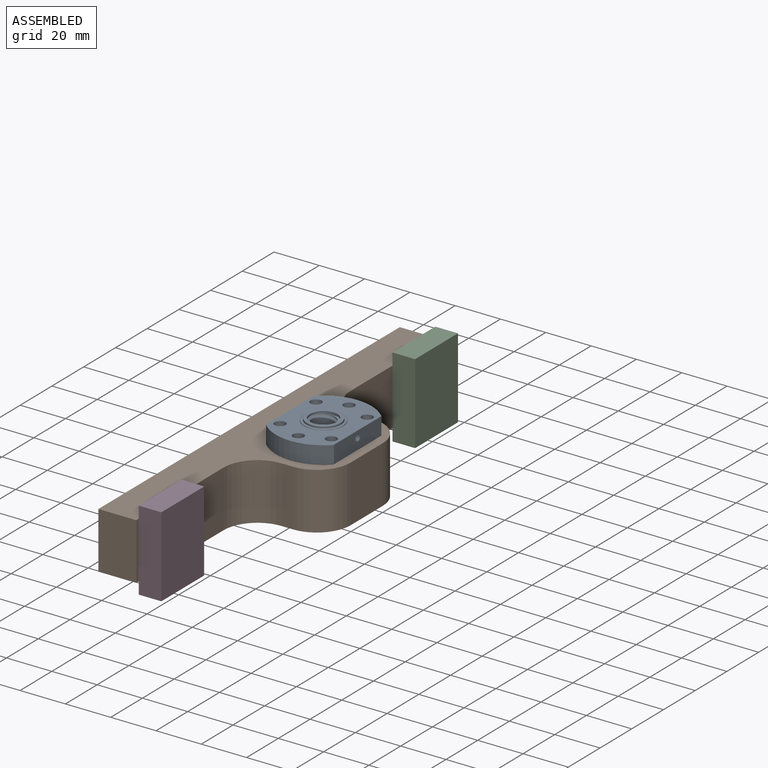
[diagram: assembled view]
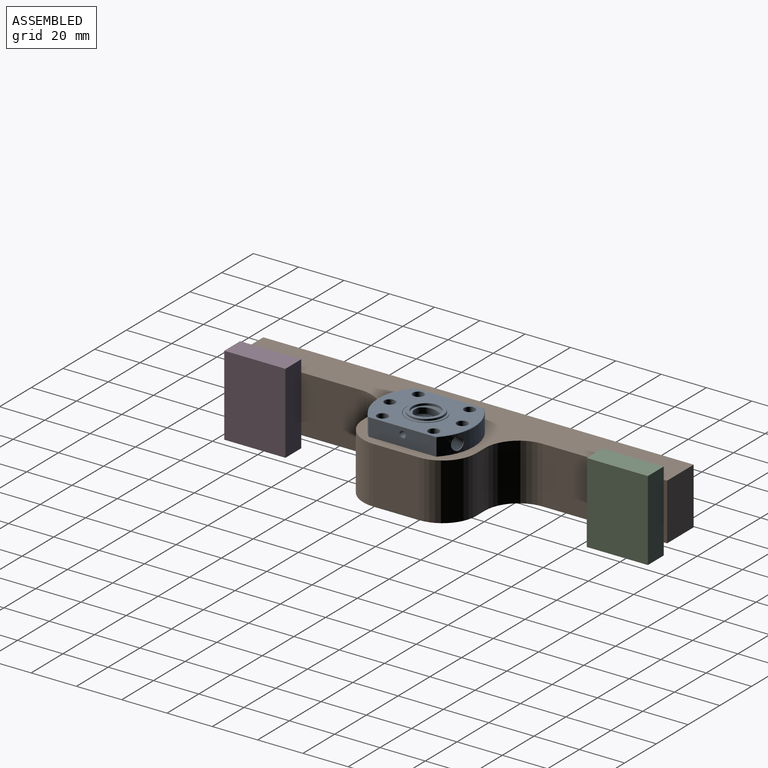
[diagram: assembled view, second angle]
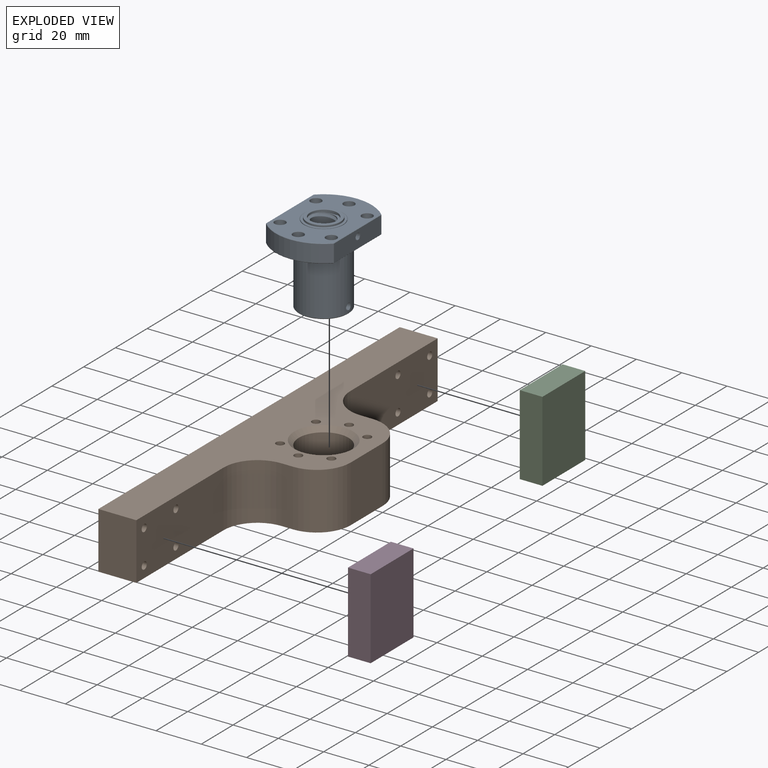
[diagram: exploded view]
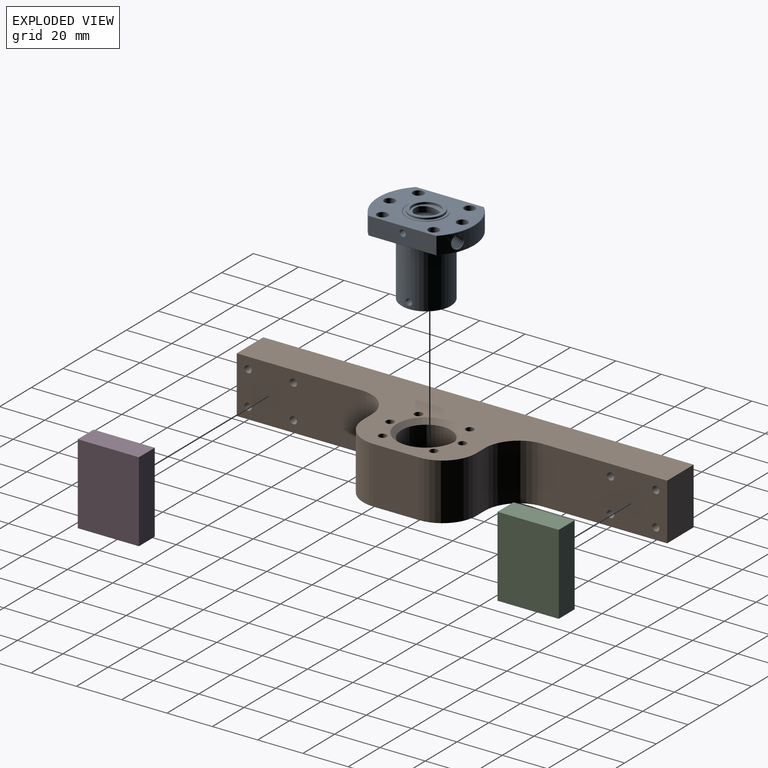
[diagram: exploded view, second angle]
ASSEMBLY  parts=4 mates=3
PART A: 102 faces, bbox 45.1x42.8x33 mm
  f0: cylinder r=1.54mm len=6.58mm, axis (0,0,-1), area 14.7mm2, adj f1,f3,f4,f5
  f1: bspline ~6.91x3.09mm, area 37.3mm2, adj f0,f2,f3,f5
  f2: cylinder r=1.26mm len=6.56mm, axis (0,0,-1), area 6.5mm2, adj f1,f3,f4,f5
  f3: cylinder r=8.5mm len=2.9mm, axis (0,1,0), area 6.1mm2, adj f0,f1,f2,f4
  f4: bspline ~6.88x3.09mm, area 37.4mm2, adj f0,f2,f3,f5
  f5: plane 29.89x7.84mm, normal (0,0,1), area 222.7mm2, adj f0,f1,f2,f4,f6,f99,f100,f101
  f6: cylinder r=0.3mm len=7.7mm, axis (0,1,0), area 1.8mm2, adj f5,f7,f97,f98
  f7: cylinder r=21.21mm len=29.82mm, axis (0,1,0), area 254.6mm2, adj f6,f8,f95,f96
  f8: cylinder r=0.3mm len=7.7mm, axis (0,1,0), area 1.8mm2, adj f7,f9,f93,f94
  f9: plane 29.89x7.84mm, normal (0,0,-1), area 222.7mm2, adj f8,f10,f12,f13,f14,f15,f91,f92
  f10: cylinder r=1.26mm len=6.59mm, axis (0,0,-1), area 6.5mm2, adj f9,f11,f12,f14
  f11: cylinder r=8.5mm len=2.87mm, axis (0,1,0), area 6.3mm2, adj f10,f12,f13,f14
  f12: bspline ~6.91x3.08mm, area 37.3mm2, adj f9,f10,f11,f13
  f13: cylinder r=1.54mm len=6.62mm, axis (0,0,-1), area 14.8mm2, adj f9,f11,f12,f14
  f14: bspline ~6.94x3.09mm, area 37.4mm2, adj f9,f10,f11,f13
  f15: cylinder r=0.3mm len=7.7mm, axis (0,1,0), area 1.8mm2, adj f9,f16,f89,f90
  f16: cylinder r=21.21mm len=29.82mm, axis (0,1,0), area 231mm2, adj f15,f17,f26,f88,f100
  f17: cone r=2.88mm half-angle=45deg, axis (0.92,0,0.38), area 8.5mm2, adj f16,f18,f25
  f18: plane 5.88x5.55mm, normal (-0.92,0,-0.38), area 5.3mm2, adj f17,f19,f23,f24
  f19: bspline ~12.73x9.06mm, area 141.6mm2, adj f18,f20,f24,f25
  f20: cylinder r=8.5mm len=5.73mm, axis (0,1,0), area 23.7mm2, adj f19,f21,f22,f23,f24,f25
  f21: cylinder r=3.07mm len=4.12mm, axis (-0.92,0,-0.38), area 0.4mm2, adj f20,f22,f23
  f22: plane 3.48x0.53mm, normal (0.92,0,0.38), area 1.3mm2, adj f20,f21,f23
  f23: bspline ~13.61x9.15mm, area 141.4mm2, adj f18,f20,f21,f22,f24,f25
  f24: cylinder r=3.07mm len=13.86mm, axis (-0.92,0,-0.38), area 55.7mm2, adj f18,f19,f20,f23
  f25: cylinder r=2.52mm len=13.38mm, axis (-0.92,0,-0.38), area 24.4mm2, adj f17,f19,f20,f23
  f26: cone r=21.14mm half-angle=45deg, axis (0,-1,0), area 7mm2, adj f16,f27,f28,f89
  f27: cone r=0.23mm half-angle=45deg, axis (0,-1,0), area 0mm2, adj f26,f28,f99,f100
  f28: plane 42.13x29.7mm, normal (0,1,0), area 776.8mm2, adj f26,f27,f29,f82,f83,f84,f85,f86
  f29: cone r=2.43mm half-angle=45deg, axis (0,1,0), area 3.2mm2, adj f28,f30
  f30: cylinder r=2.35mm len=7.7mm, axis (0,1,0), area 113.7mm2, adj f29,f31
  f31: cone r=2.43mm half-angle=45deg, axis (0,-1,0), area 3.2mm2, adj f30,f32
  f32: plane 42.13x29.7mm, normal (0,-1,0), area 640mm2, adj f31,f33,f35,f37,f75,f77,f79,f81
  f33: cone r=2.43mm half-angle=45deg, axis (0,-1,0), area 3.2mm2, adj f32,f34
  f34: cylinder r=2.35mm len=7.7mm, axis (0,1,0), area 113.7mm2, adj f33,f82
  f35: cone r=2.43mm half-angle=45deg, axis (0,-1,0), area 3.2mm2, adj f32,f36
  f36: cylinder r=2.35mm len=7.7mm, axis (0,1,0), area 113.7mm2, adj f35,f83
  f37: cylinder r=11mm len=26.7mm, axis (0,1,0), area 1833mm2, adj f32,f38,f40,f41,f42,f43,f47,f48
  f38: cylinder r=1.54mm len=3.09mm, axis (0,0,-1), area 5.6mm2, adj f37,f39,f40,f42
  f39: cylinder r=8.5mm len=2.87mm, axis (0,1,0), area 6.3mm2, adj f38,f40,f41,f42
  f40: bspline ~3.06x3.03mm, area 14.5mm2, adj f37,f38,f39,f41
  f41: cylinder r=1.26mm len=2.54mm, axis (0,0,-1), area 2.5mm2, adj f37,f39,f40,f42
  f42: bspline ~3.07x3.07mm, area 14.4mm2, adj f37,f38,f39,f41
  f43: cylinder r=1.54mm len=3.09mm, axis (0,0,-1), area 5.6mm2, adj f37,f44,f47,f49
  f44: cylinder r=8.5mm len=2.9mm, axis (0,1,0), area 6.4mm2, adj f43,f45,f46,f47,f48,f49
  f45: bspline ~1.42x0.44mm, area 0mm2, adj f44,f49
  f46: bspline ~1.4x0.42mm, area 0mm2, adj f44,f47
  f47: bspline ~3.04x3mm, area 14.4mm2, adj f37,f43,f44,f46,f48
  f48: cylinder r=1.26mm len=2.54mm, axis (0,0,-1), area 2.5mm2, adj f37,f44,f47,f49
  f49: bspline ~3.07x3.06mm, area 14.5mm2, adj f37,f43,f44,f45,f48
  f50: cone r=10.85mm half-angle=45deg, axis (0,1,0), area 28.9mm2, adj f37,f51
  f51: plane 21.4x21.4mm, normal (0,-1,0), area 116.4mm2, adj f50,f52
  f52: cone r=8.65mm half-angle=45deg, axis (0,-1,0), area 23.1mm2, adj f51,f53
  f53: cylinder r=8.5mm len=17mm, axis (0,1,0), area 16mm2, adj f52,f54
  f54: plane 17x17mm, normal (0,-1,0), area 40.7mm2, adj f53,f55
  f55: torus R=7.7mm, axis (0,1,0), area 14.9mm2, adj f54,f56
  f56: cylinder r=7.5mm len=15mm, axis (0,-1,0), area 28.3mm2, adj f55,f57
  f57: torus R=7.3mm, axis (0,-1,0), area 14.7mm2, adj f56,f58
  f58: plane 14.6x14.6mm, normal (0,-1,0), area 46.7mm2, adj f57,f59
  f59: torus R=6.2mm, axis (0,1,0), area 12mm2, adj f58,f60
  f60: cylinder r=6mm len=12mm, axis (0,-1,0), area 30.2mm2, adj f59,f61,f74
  f61: plane 12.71x9.53mm, normal (0,-1,0), area 15.4mm2, adj f60,f62,f73
  f62: cylinder r=5mm len=35mm, axis (0,1,0), area 687.2mm2, adj f61,f63,f73
  f63: plane 12.7x9.53mm, normal (0,1,0), area 15.8mm2, adj f62,f64,f73
  f64: cylinder r=6mm len=12mm, axis (0,1,0), area 30.2mm2, adj f63,f65,f72
  f65: torus R=6.2mm, axis (0,-1,0), area 12mm2, adj f64,f66
  f66: plane 14.6x14.6mm, normal (0,1,0), area 46.7mm2, adj f65,f67
  f67: torus R=7.3mm, axis (0,1,0), area 14.7mm2, adj f66,f68
  f68: cylinder r=7.5mm len=15mm, axis (0,1,0), area 28.3mm2, adj f67,f69
  f69: torus R=7.7mm, axis (0,-1,0), area 14.9mm2, adj f68,f70
  f70: plane 17x17mm, normal (0,1,0), area 40.7mm2, adj f69,f71
  f71: cylinder r=8.5mm len=17mm, axis (0,1,0), area 16mm2, adj f70,f84
  f72: plane 16.28x12.22mm, normal (0,-1,0), area 25.2mm2, adj f64,f73
  f73: bspline ~40.16x15.17mm, area 2170mm2, adj f61,f62,f63,f72,f74
  f74: plane 16.29x12.23mm, normal (0,1,0), area 25.4mm2, adj f60,f73
  f75: cone r=2.43mm half-angle=45deg, axis (0,-1,0), area 3.2mm2, adj f32,f76
  f76: cylinder r=2.35mm len=7.7mm, axis (0,1,0), area 113.7mm2, adj f75,f85
  f77: cone r=2.43mm half-angle=45deg, axis (0,-1,0), area 3.2mm2, adj f32,f78
  f78: cylinder r=2.35mm len=7.7mm, axis (0,1,0), area 113.7mm2, adj f77,f86
  f79: cone r=2.43mm half-angle=45deg, axis (0,-1,0), area 3.2mm2, adj f32,f80
  f80: cylinder r=2.35mm len=7.7mm, axis (0,1,0), area 113.7mm2, adj f79,f87
  f81: cone r=0.23mm half-angle=45deg, axis (0,1,0), area 0mm2, adj f32,f88,f100,f101
  f82: cone r=2.43mm half-angle=45deg, axis (0,1,0), area 3.2mm2, adj f28,f34
  f83: cone r=2.43mm half-angle=45deg, axis (0,1,0), area 3.2mm2, adj f28,f36
  f84: cone r=8.65mm half-angle=45deg, axis (0,1,0), area 23.1mm2, adj f28,f71
  f85: cone r=2.43mm half-angle=45deg, axis (0,1,0), area 3.2mm2, adj f28,f76
  f86: cone r=2.43mm half-angle=45deg, axis (0,1,0), area 3.2mm2, adj f28,f78
  f87: cone r=2.43mm half-angle=45deg, axis (0,1,0), area 3.2mm2, adj f28,f80
  f88: cone r=21.14mm half-angle=45deg, axis (0,1,0), area 7mm2, adj f16,f32,f81,f90
  f89: cone r=0.23mm half-angle=45deg, axis (0,-1,0), area 0mm2, adj f15,f26,f28,f91
  f90: cone r=0.23mm half-angle=45deg, axis (0,1,0), area 0mm2, adj f15,f32,f88,f92
  f91: plane 29.75x0.15mm, normal (0,0.71,-0.71), area 6.3mm2, adj f9,f28,f89,f93
  f92: plane 29.75x0.15mm, normal (0,-0.71,-0.71), area 6.3mm2, adj f9,f32,f90,f94
  f93: cone r=0.23mm half-angle=45deg, axis (0,-1,0), area 0mm2, adj f8,f28,f91,f95
  f94: cone r=0.23mm half-angle=45deg, axis (0,1,0), area 0mm2, adj f8,f32,f92,f96
  f95: cone r=21.14mm half-angle=45deg, axis (0,-1,0), area 7mm2, adj f7,f28,f93,f97
  f96: cone r=21.14mm half-angle=45deg, axis (0,1,0), area 7mm2, adj f7,f32,f94,f98
  f97: cone r=0.23mm half-angle=45deg, axis (0,-1,0), area 0mm2, adj f6,f28,f95,f99
  f98: cone r=0.23mm half-angle=45deg, axis (0,1,0), area 0mm2, adj f6,f32,f96,f101
  f99: plane 29.75x0.15mm, normal (0,0.71,0.71), area 6.3mm2, adj f5,f27,f28,f97
  f100: cylinder r=0.3mm len=7.7mm, axis (0,1,0), area 1.8mm2, adj f5,f16,f27,f81
  f101: plane 29.75x0.15mm, normal (0,-0.71,0.71), area 6.3mm2, adj f5,f32,f81,f98
PART B: 38 faces, bbox 52x190x25 mm
  f0: plane 25x16.75mm, normal (0,1,0), area 418.7mm2, adj f1,f7,f8,f9
  f1: plane 190x25mm, normal (-1,0,0), area 4424.3mm2, adj f0,f2,f8,f9,f26,f27,f28,f29
  f2: plane 25x16.75mm, normal (0,-1,0), area 418.7mm2, adj f1,f3,f8,f9
  f3: plane 55x25mm, normal (1,0,0), area 1342.8mm2, adj f2,f8,f9,f15,f16,f17,f18,f34
  f4: plane 25x5.2mm, normal (0,-1,0), area 130mm2, adj f8,f9,f34,f35
  f5: plane 25x20mm, normal (1,0,0), area 500mm2, adj f8,f9,f35,f36
  f6: plane 25x5.2mm, normal (0,1,0), area 130mm2, adj f8,f9,f36,f37
  f7: plane 55x25mm, normal (1,0,0), area 1342.8mm2, adj f0,f8,f9,f11,f12,f13,f14,f37
  f8: plane 190x51.95mm, normal (0,0,1), area 4350.5mm2, adj f0,f1,f2,f3,f4,f5,f6,f7
  f9: plane 190x51.95mm, normal (0,0,-1), area 4501.3mm2, adj f0,f1,f2,f3,f4,f5,f6,f7
  f10: cylinder r=11mm len=23mm, axis (0,0,1), area 1589.6mm2, adj f9,f25
  f11: cylinder r=1.6mm len=14.75mm, axis (1,0,0), area 148.3mm2, adj f7,f32
  f12: cylinder r=1.6mm len=14.75mm, axis (1,0,0), area 148.3mm2, adj f7,f31
  f13: cylinder r=1.6mm len=14.75mm, axis (1,0,0), area 148.3mm2, adj f7,f30
  f14: cylinder r=1.6mm len=14.75mm, axis (1,0,0), area 148.3mm2, adj f7,f33
  f15: cylinder r=1.6mm len=14.75mm, axis (1,0,0), area 148.3mm2, adj f3,f26
  f16: cylinder r=1.6mm len=14.75mm, axis (1,0,0), area 148.3mm2, adj f3,f27
  f17: cylinder r=1.6mm len=14.75mm, axis (1,0,0), area 148.3mm2, adj f3,f28
  f18: cylinder r=1.6mm len=14.75mm, axis (1,0,0), area 148.3mm2, adj f3,f29
  f19: cylinder r=1.8mm len=25mm, axis (0,0,1), area 282.7mm2, adj f8,f9
  f20: cylinder r=1.8mm len=25mm, axis (0,0,1), area 282.7mm2, adj f8,f9
  f21: cylinder r=1.8mm len=25mm, axis (0,0,1), area 282.7mm2, adj f8,f9
  f22: cylinder r=1.8mm len=25mm, axis (0,0,1), area 282.7mm2, adj f8,f9
  f23: cylinder r=1.8mm len=25mm, axis (0,0,1), area 282.7mm2, adj f8,f9
  f24: cylinder r=1.8mm len=25mm, axis (0,0,1), area 282.7mm2, adj f8,f9
  f25: cone r=11mm half-angle=45deg, axis (0,0,1), area 213.3mm2, adj f8,f10
  f26: cone r=1.6mm half-angle=45deg, axis (-1,0,0), area 46.2mm2, adj f1,f15
  f27: cone r=1.6mm half-angle=45deg, axis (-1,0,0), area 46.2mm2, adj f1,f16
  f28: cone r=1.6mm half-angle=45deg, axis (-1,0,0), area 46.2mm2, adj f1,f17
  f29: cone r=1.6mm half-angle=45deg, axis (-1,0,0), area 46.2mm2, adj f1,f18
  f30: cone r=3.6mm half-angle=45deg, axis (-1,0,0), area 46.2mm2, adj f1,f13
  f31: cone r=3.6mm half-angle=45deg, axis (-1,0,0), area 46.2mm2, adj f1,f12
  f32: cone r=3.6mm half-angle=45deg, axis (-1,0,0), area 46.2mm2, adj f1,f11
  f33: cone r=3.6mm half-angle=45deg, axis (-1,0,0), area 46.2mm2, adj f1,f14
  f34: cylinder r=15mm len=25mm, axis (0,0,1), area 589mm2, adj f3,f4,f8,f9
  f35: cylinder r=15mm len=25mm, axis (0,0,1), area 589mm2, adj f4,f5,f8,f9
  f36: cylinder r=15mm len=25mm, axis (0,0,-1), area 589mm2, adj f5,f6,f8,f9
  f37: cylinder r=15mm len=25mm, axis (0,0,1), area 589mm2, adj f6,f7,f8,f9
PART C: 14 faces, bbox 27x35.5x10 mm
  f0: plane 35.5x27mm, normal (0,0,-1), area 958.5mm2, adj f1,f3,f4,f5
  f1: plane 35.5x10mm, normal (1,0,0), area 355mm2, adj f0,f2,f4,f5
  f2: plane 35.5x27mm, normal (0,0,1), area 938.9mm2, adj f1,f3,f4,f5,f6,f8,f10,f12
  f3: plane 35.5x10mm, normal (-1,0,0), area 355mm2, adj f0,f2,f4,f5
  f4: plane 27x10mm, normal (0,-1,0), area 270mm2, adj f0,f1,f2,f3
  f5: plane 27x10mm, normal (0,1,0), area 270mm2, adj f0,f1,f2,f3
  f6: cylinder r=1.25mm len=3mm, axis (0,0,1), area 23.6mm2, adj f2,f7
  f7: plane 2.5x2.5mm, normal (0,0,1), area 4.9mm2, adj f6
  f8: cylinder r=1.25mm len=3mm, axis (0,0,1), area 23.6mm2, adj f2,f9
  f9: plane 2.5x2.5mm, normal (0,0,1), area 4.9mm2, adj f8
  f10: cylinder r=1.25mm len=3mm, axis (0,0,1), area 23.6mm2, adj f2,f11
  f11: plane 2.5x2.5mm, normal (0,0,1), area 4.9mm2, adj f10
  f12: cylinder r=1.25mm len=3mm, axis (0,0,1), area 23.6mm2, adj f2,f13
  f13: plane 2.5x2.5mm, normal (0,0,1), area 4.9mm2, adj f12
PART D: same geometry as C
PLACE A rot(axis=(0.58,0.58,0.58),120deg) t=(-32,0,-14.5)mm
PLACE B at identity fixed
PLACE C rot(axis=(0.58,-0.58,-0.58),120deg) t=(-39,80,0)mm
PLACE D rot(axis=(0.58,-0.58,-0.58),120deg) t=(-39,-80,0)mm
MATE fastened A.f3 <-> B.f10  axis (0,0,-1) through (-32,0,12.5)mm
MATE fastened D.f6 <-> B.f16  axis (-1,0,0) through (-48.2,-70,7.5)mm
MATE fastened C.f6 <-> B.f11  axis (-1,0,0) through (-48.2,90,7.5)mm
